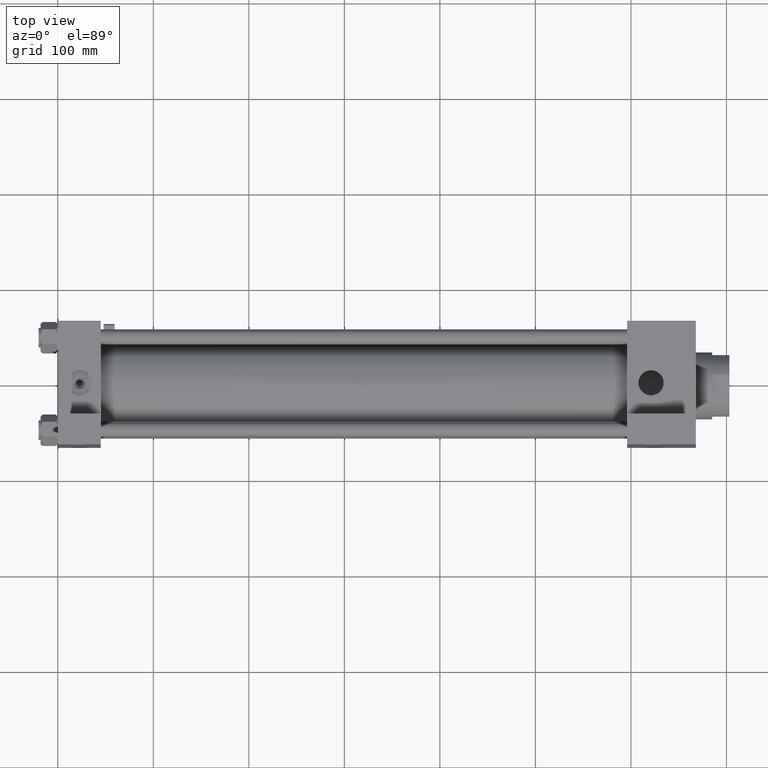
[diagram: clean part render]
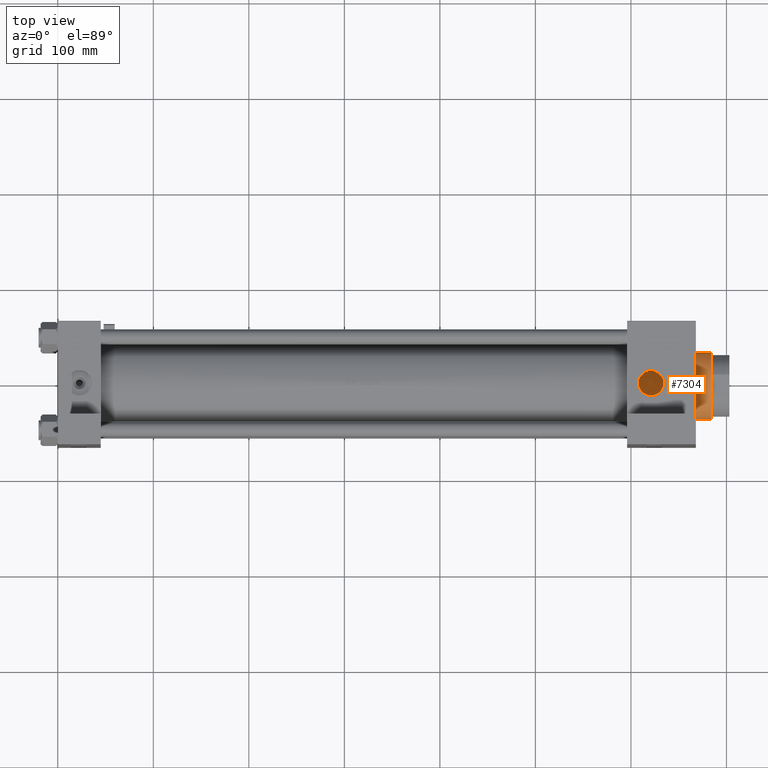
[diagram: same view with one face highlighted and labeled with its STEP entity id]
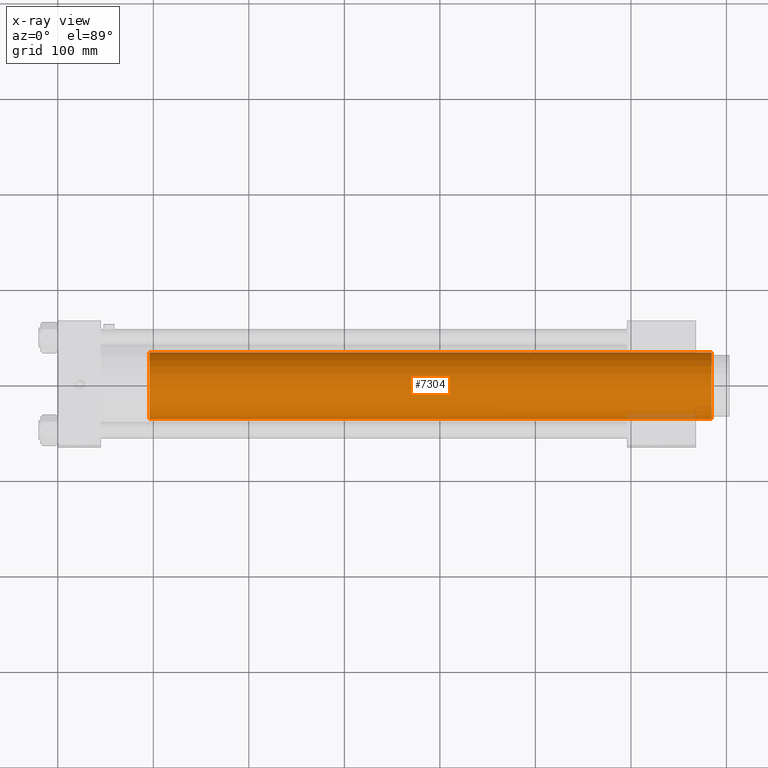
[diagram: x-ray of the same camera — body ghosted, the highlighted face saturated]
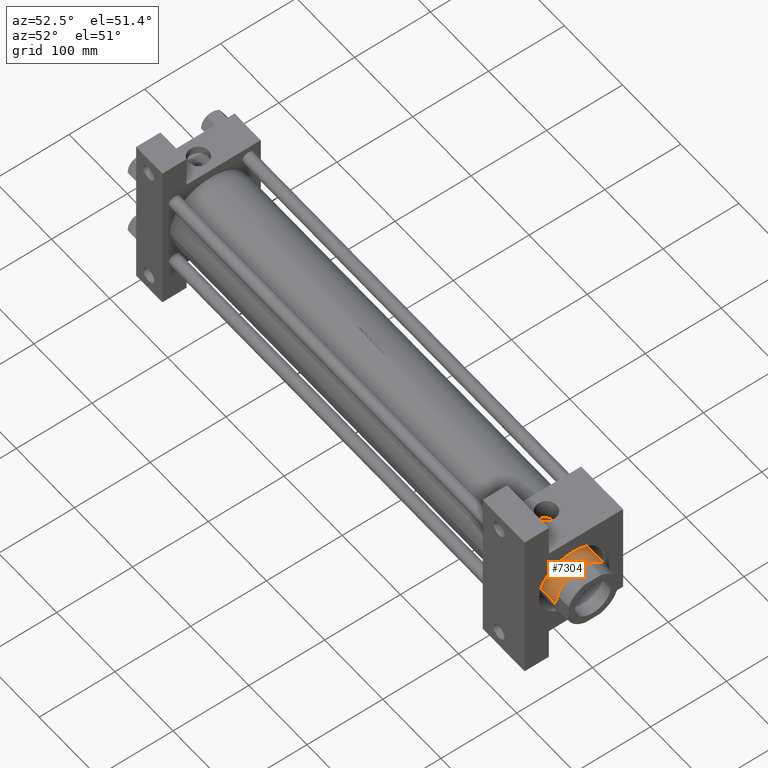
[diagram: same view with one face highlighted and labeled with its STEP entity id]
A machine part, top view. The second image highlights one B-rep face of the part: STEP entity #7304.
The next image is the same camera in x-ray: the body ghosted, the highlighted face saturated — about 1% of this face is hidden behind the body in this view.
A second angle (auxiliary view) of the same face is appended — the face is thin or edge-on in the first view.
In plain terms, the highlighted cylindrical surface (edge-blend (fillet) strip) has radius 35 mm, axis along (-1, 0, 0).
Its self-contained STEP definition (entity closure, byte-faithful):
#291 = CYLINDRICAL_SURFACE ( 'NONE', #19902, 35.00000000000000711 ) ;
#803 = LINE ( 'NONE', #29854, #46179 ) ;
#1327 = CARTESIAN_POINT ( 'NONE',  ( 0.000000000000000000, 0.000000000000000000, 640.0000000000000000 ) ) ;
#1664 = VERTEX_POINT ( 'NONE', #8473 ) ;
#4349 = DIRECTION ( 'NONE',  ( 0.000000000000000000, 0.000000000000000000, -1.000000000000000000 ) ) ;
#7304 = ADVANCED_FACE ( 'NONE', ( #29338 ), #291, .T. ) ;
#8265 = LINE ( 'NONE', #15690, #36976 ) ;
#8287 = EDGE_LOOP ( 'NONE', ( #35652, #22480, #51908, #23860 ) ) ;
#8473 = CARTESIAN_POINT ( 'NONE',  ( 35.00000000000000711, 4.286263797015737285E-15, 639.5000000000001137 ) ) ;
#9237 = DIRECTION ( 'NONE',  ( -0.000000000000000000, -0.000000000000000000, -1.000000000000000000 ) ) ;
#9747 = EDGE_CURVE ( 'NONE', #1664, #27859, #803, .T. ) ;
#9758 = DIRECTION ( 'NONE',  ( -0.000000000000000000, -0.000000000000000000, -1.000000000000000000 ) ) ;
#12689 = DIRECTION ( 'NONE',  ( -1.000000000000000000, 0.000000000000000000, 0.000000000000000000 ) ) ;
#15690 = CARTESIAN_POINT ( 'NONE',  ( -35.00000000000000711, 0.000000000000000000, 640.0000000000000000 ) ) ;
#16512 = CARTESIAN_POINT ( 'NONE',  ( 0.000000000000000000, 0.000000000000000000, 639.5000000000001137 ) ) ;
#18467 = CARTESIAN_POINT ( 'NONE',  ( -35.00000000000000711, 0.000000000000000000, 639.5000000000001137 ) ) ;
#18515 = EDGE_CURVE ( 'NONE', #1664, #24678, #45569, .T. ) ;
#19379 = DIRECTION ( 'NONE',  ( 0.000000000000000000, 0.000000000000000000, 1.000000000000000000 ) ) ;
#19902 = AXIS2_PLACEMENT_3D ( 'NONE', #1327, #9237, #12689 ) ;
#20230 = AXIS2_PLACEMENT_3D ( 'NONE', #16512, #4349, #20473 ) ;
#20473 = DIRECTION ( 'NONE',  ( 1.000000000000000000, 0.000000000000000000, 0.000000000000000000 ) ) ;
#22480 = ORIENTED_EDGE ( 'NONE', *, *, #18515, .T. ) ;
#23072 = CARTESIAN_POINT ( 'NONE',  ( 0.000000000000000000, 0.000000000000000000, 51.00000000000000000 ) ) ;
#23860 = ORIENTED_EDGE ( 'NONE', *, *, #34258, .T. ) ;
#24678 = VERTEX_POINT ( 'NONE', #18467 ) ;
#24864 = CARTESIAN_POINT ( 'NONE',  ( 35.00000000000000711, 4.286263797015737285E-15, 51.00000000000000000 ) ) ;
#27859 = VERTEX_POINT ( 'NONE', #24864 ) ;
#29338 = FACE_OUTER_BOUND ( 'NONE', #8287, .T. ) ;
#29854 = CARTESIAN_POINT ( 'NONE',  ( 35.00000000000000711, 4.286263797015737285E-15, 640.0000000000000000 ) ) ;
#33972 = AXIS2_PLACEMENT_3D ( 'NONE', #23072, #19379, #39724 ) ;
#34258 = EDGE_CURVE ( 'NONE', #47023, #27859, #42442, .T. ) ;
#35652 = ORIENTED_EDGE ( 'NONE', *, *, #9747, .F. ) ;
#36084 = CARTESIAN_POINT ( 'NONE',  ( -35.00000000000000711, 0.000000000000000000, 51.00000000000000000 ) ) ;
#36976 = VECTOR ( 'NONE', #40007, 1000.000000000000000 ) ;
#39724 = DIRECTION ( 'NONE',  ( 1.000000000000000000, 0.000000000000000000, 0.000000000000000000 ) ) ;
#40007 = DIRECTION ( 'NONE',  ( -0.000000000000000000, -0.000000000000000000, -1.000000000000000000 ) ) ;
#42442 = CIRCLE ( 'NONE', #33972, 35.00000000000000711 ) ;
#45569 = CIRCLE ( 'NONE', #20230, 35.00000000000000711 ) ;
#46179 = VECTOR ( 'NONE', #9758, 1000.000000000000000 ) ;
#47023 = VERTEX_POINT ( 'NONE', #36084 ) ;
#48735 = EDGE_CURVE ( 'NONE', #24678, #47023, #8265, .T. ) ;
#51908 = ORIENTED_EDGE ( 'NONE', *, *, #48735, .T. ) ;